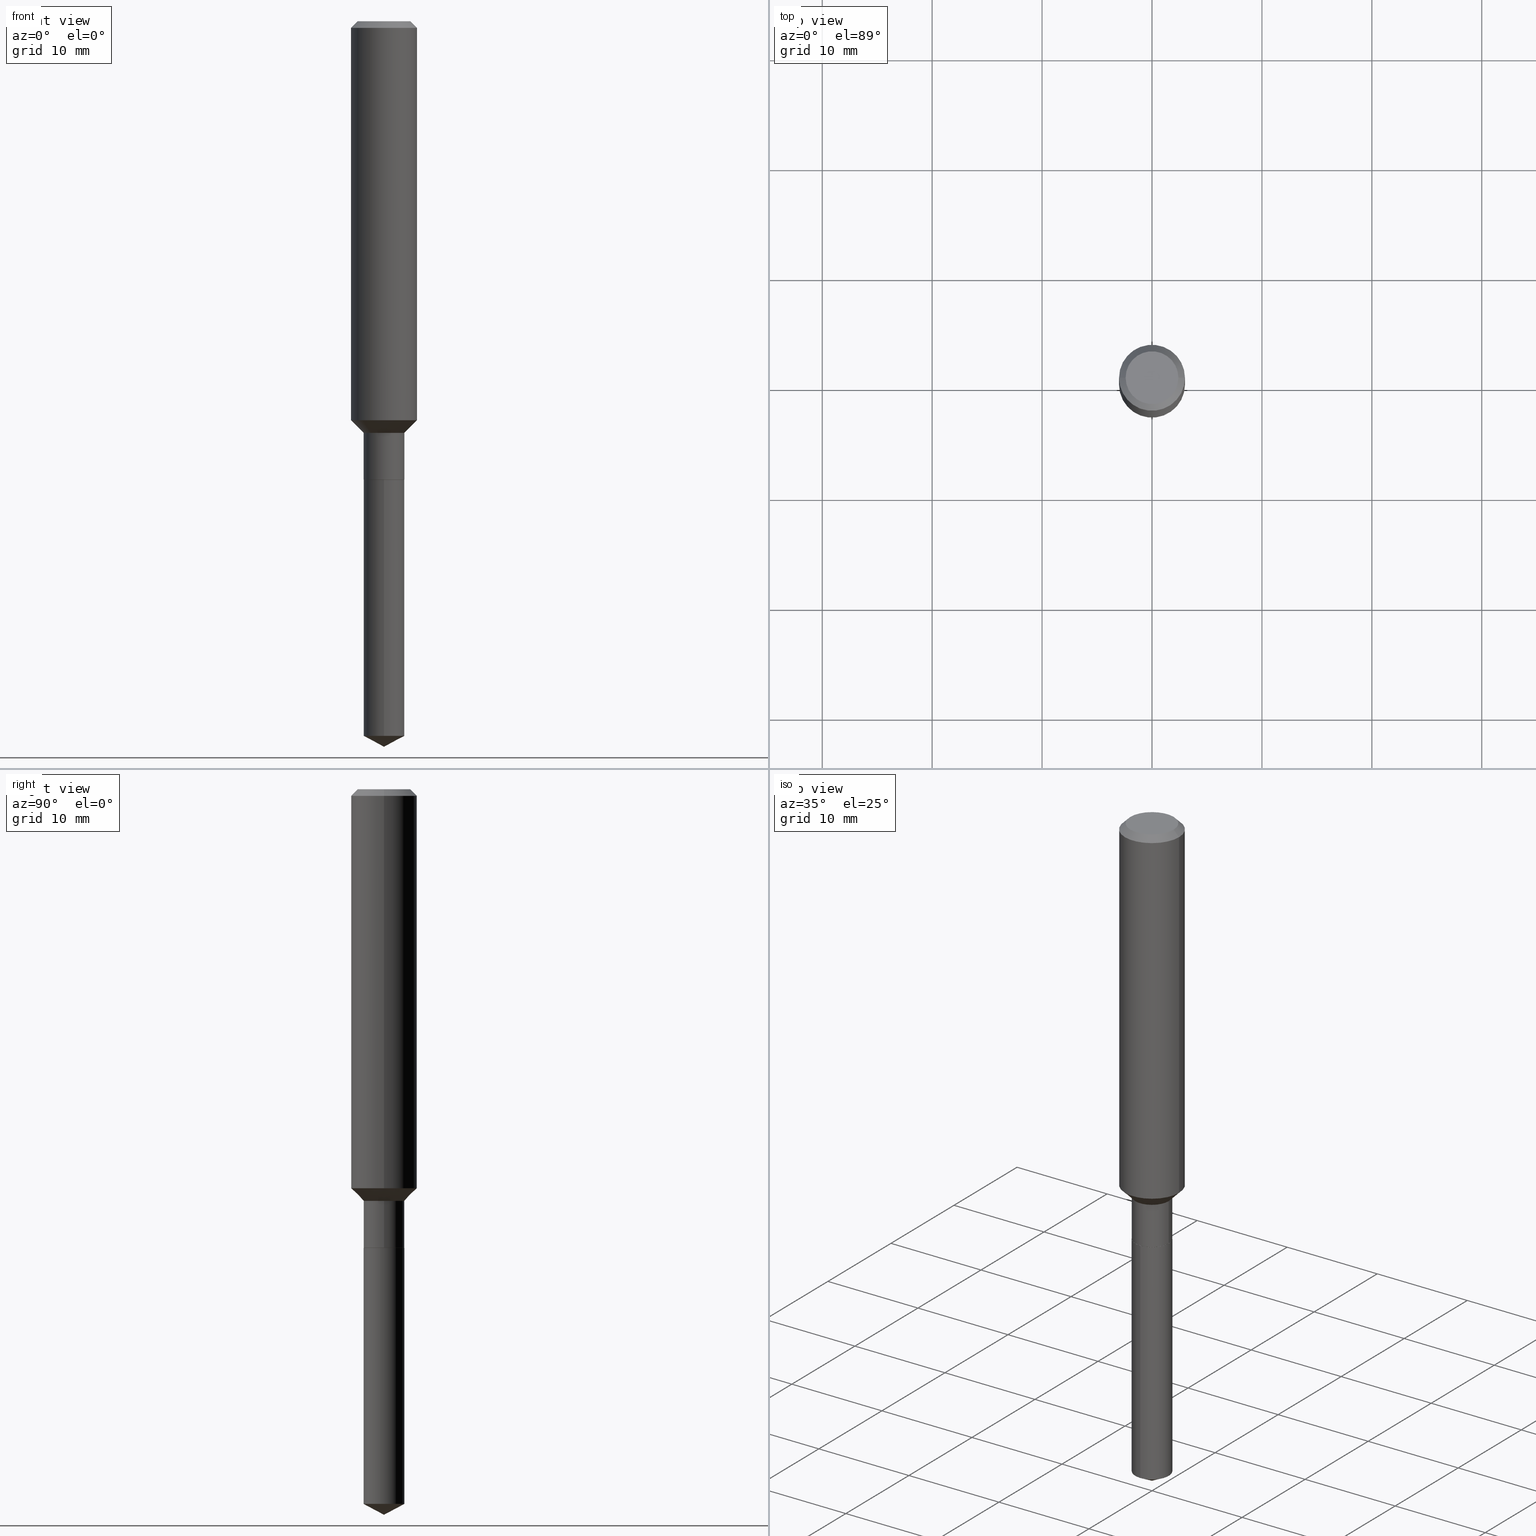
[diagram: canonical four-view strip — front | top / right | iso, engineering-drawing reading convention]
A machine part, canonical four-view strip (front | top / right | iso — engineering-drawing reading convention). The complete STEP part file that produces these views, byte-faithful:
ISO-10303-21;
HEADER;
FILE_DESCRIPTION (( 'STEP AP203' ),
    '1' );
FILE_NAME ('65167.STEP',
    '2024-04-24T20:51:15',
    ( '' ),
    ( '' ),
    'SwSTEP 2.0',
    'SolidWorks 2023',
    '' );
FILE_SCHEMA (( 'CONFIG_CONTROL_DESIGN' ));
ENDSEC;

DATA;
#1 = PERSON_AND_ORGANIZATION ( #147, #418 ) ;
#2 = CARTESIAN_POINT ( 'NONE',  ( 5.176303830012731051E-16, 0.07284999999999426656, -1.641699999999999937 ) ) ;
#3 = CARTESIAN_POINT ( 'NONE',  ( 6.338915894833542662E-29, -9.094304826466861020E-15, -2.598399999999999821 ) ) ;
#4 = AXIS2_PLACEMENT_3D ( 'NONE', #10, #49, #464 ) ;
#5 = AXIS2_PLACEMENT_3D ( 'NONE', #321, #136, #216 ) ;
#6 = EDGE_CURVE ( 'NONE', #28, #138, #320, .T. ) ;
#7 = EDGE_CURVE ( 'NONE', #75, #28, #456, .T. ) ;
#8 = DIRECTION ( 'NONE',  ( -6.982962677686265922E-15, -1.000000000000000000, 3.749962928845934523E-15 ) ) ;
#9 = DATE_TIME_ROLE ( 'classification_date' ) ;
#10 = CARTESIAN_POINT ( 'NONE',  ( 5.776197320209328408E-31, -8.246878922347560526E-17, -0.02362000000000014435 ) ) ;
#11 = VERTEX_POINT ( 'NONE', #195 ) ;
#12 = CARTESIAN_POINT ( 'NONE',  ( 6.254143752238989937E-29, -8.944808678653955332E-15, -2.559664967903461097 ) ) ;
#13 = VECTOR ( 'NONE', #304, 39.37007874015748143 ) ;
#14 = EDGE_LOOP ( 'NONE', ( #234, #66, #118, #146 ) ) ;
#15 = CARTESIAN_POINT ( 'NONE',  ( 2.358133508849003952E-46, -3.366789680499277518E-32, -9.642868896486260050E-18 ) ) ;
#16 = ORIENTED_EDGE ( 'NONE', *, *, #91, .F. ) ;
#17 = DIRECTION ( 'NONE',  ( 1.000000000000000000, -6.982962677686263555E-15, 0.000000000000000000 ) ) ;
#18 = ORIENTED_EDGE ( 'NONE', *, *, #7, .T. ) ;
#19 = EDGE_CURVE ( 'NONE', #181, #243, #253, .T. ) ;
#20 = LINE ( 'NONE', #130, #452 ) ;
#21 = EDGE_LOOP ( 'NONE', ( #68, #469, #481, #78 ) ) ;
#22 = AXIS2_PLACEMENT_3D ( 'NONE', #257, #422, #373 ) ;
#23 = AXIS2_PLACEMENT_3D ( 'NONE', #25, #279, #61 ) ;
#24 = EDGE_CURVE ( 'NONE', #101, #75, #124, .T. ) ;
#25 = CARTESIAN_POINT ( 'NONE',  ( 3.604865567197509213E-29, -5.146792641588679559E-15, -1.474099999999999744 ) ) ;
#26 = ORIENTED_EDGE ( 'NONE', *, *, #457, .T. ) ;
#27 = CARTESIAN_POINT ( 'NONE',  ( 0.09447999999999998066, -7.704367267948738690E-16, -1.928573779296752193E-17 ) ) ;
#28 = VERTEX_POINT ( 'NONE', #183 ) ;
#29 = COORDINATED_UNIVERSAL_TIME_OFFSET ( 5, 0, .BEHIND. ) ;
#30 = ORIENTED_EDGE ( 'NONE', *, *, #263, .T. ) ;
#31 = AXIS2_PLACEMENT_3D ( 'NONE', #121, #426, #8 ) ;
#32 = CC_DESIGN_APPROVAL ( #202, ( #262 ) ) ;
#33 = MECHANICAL_CONTEXT ( 'NONE', #342, 'mechanical' ) ;
#34 = ORIENTED_EDGE ( 'NONE', *, *, #188, .T. ) ;
#35 = APPROVAL_ROLE ( '' ) ;
#36 = CARTESIAN_POINT ( 'NONE',  ( -0.1180999999999999966, 7.422191030112725094E-16, -0.02362000000000014435 ) ) ;
#37 = DATE_TIME_ROLE ( 'creation_date' ) ;
#38 = CARTESIAN_POINT ( 'NONE',  ( -8.969647193287061637E-28, 1.287134536811234496E-13, 36.77167874015748339 ) ) ;
#39 = AXIS2_PLACEMENT_3D ( 'NONE', #38, #332, #145 ) ;
#40 = PERSON_AND_ORGANIZATION_ROLE ( 'creator' ) ;
#41 = LOCAL_TIME ( 16, 51, 15.00000000000000000, #381 ) ;
#42 = DIRECTION ( 'NONE',  ( 1.000000000000000000, -6.982962677686272233E-15, 0.000000000000000000 ) ) ;
#43 = COORDINATED_UNIVERSAL_TIME_OFFSET ( 5, 0, .BEHIND. ) ;
#44 = DIRECTION ( 'NONE',  ( 1.000000000000000000, -6.982962677686266711E-15, 4.876176775795936353E-29 ) ) ;
#45 = CARTESIAN_POINT ( 'NONE',  ( 4.014726139114138019E-29, -5.731964913978790432E-15, -1.641699999999999493 ) ) ;
#46 = DIRECTION ( 'NONE',  ( -2.445468806185136597E-29, 3.491481338843145583E-15, 1.000000000000000000 ) ) ;
#47 = CARTESIAN_POINT ( 'NONE',  ( -5.087088310694042490E-16, -0.07285000000000572962, -1.641699999999999271 ) ) ;
#48 = ORIENTED_EDGE ( 'NONE', *, *, #24, .T. ) ;
#49 = DIRECTION ( 'NONE',  ( 2.445468806185136597E-29, -3.491481338843145583E-15, -1.000000000000000000 ) ) ;
#50 = ORIENTED_EDGE ( 'NONE', *, *, #110, .T. ) ;
#51 = ADVANCED_FACE ( 'NONE', ( #115 ), #214, .T. ) ;
#52 = DIRECTION ( 'NONE',  ( -2.445468806185136597E-29, 3.491481338843145583E-15, 1.000000000000000000 ) ) ;
#53 = AXIS2_PLACEMENT_3D ( 'NONE', #201, #125, #163 ) ;
#54 = CIRCLE ( 'NONE', #222, 0.07234999999999999765 ) ;
#55 = CYLINDRICAL_SURFACE ( 'NONE', #470, 0.07284999999999998421 ) ;
#56 = ADVANCED_FACE ( 'NONE', ( #487 ), #221, .T. ) ;
#57 = ORIENTED_EDGE ( 'NONE', *, *, #417, .T. ) ;
#58 = DIRECTION ( 'NONE',  ( -6.982962677686265922E-15, -1.000000000000000000, 3.541896320645589268E-15 ) ) ;
#59 = EDGE_LOOP ( 'NONE', ( #328, #57, #442, #396 ) ) ;
#60 = ADVANCED_FACE ( 'NONE', ( #192 ), #190, .T. ) ;
#61 = DIRECTION ( 'NONE',  ( 1.000000000000000000, -6.982962677686267499E-15, 0.000000000000000000 ) ) ;
#62 = ORIENTED_EDGE ( 'NONE', *, *, #6, .F. ) ;
#63 = CIRCLE ( 'NONE', #430, 0.07285000000000001197 ) ;
#64 = VECTOR ( 'NONE', #363, 39.37007874015748143 ) ;
#65 = CARTESIAN_POINT ( 'NONE',  ( -5.087088310694042490E-16, -0.07285000000000572962, -1.641699999999999271 ) ) ;
#66 = ORIENTED_EDGE ( 'NONE', *, *, #199, .T. ) ;
#67 = DIRECTION ( 'NONE',  ( 2.445468806185136597E-29, -3.491481338843145583E-15, -1.000000000000000000 ) ) ;
#68 = ORIENTED_EDGE ( 'NONE', *, *, #110, .F. ) ;
#69 = FACE_OUTER_BOUND ( 'NONE', #14, .T. ) ;
#70 = ORIENTED_EDGE ( 'NONE', *, *, #417, .F. ) ;
#71 = CLOSED_SHELL ( 'NONE', ( #88, #137, #171, #368, #60, #448, #427, #189, #489, #378, #474, #56 ) ) ;
#72 = CALENDAR_DATE ( 2024, 24, 4 ) ;
#73 = ORIENTED_EDGE ( 'NONE', *, *, #406, .F. ) ;
#74 =( CONVERSION_BASED_UNIT ( 'INCH', #488 ) LENGTH_UNIT ( ) NAMED_UNIT ( #278 ) );
#75 = VERTEX_POINT ( 'NONE', #423 ) ;
#76 = CC_DESIGN_PERSON_AND_ORGANIZATION_ASSIGNMENT ( #294, #40, ( #262 ) ) ;
#77 = APPROVAL_ROLE ( '' ) ;
#78 = ORIENTED_EDGE ( 'NONE', *, *, #433, .T. ) ;
#79 = AXIS2_PLACEMENT_3D ( 'NONE', #386, #46, #465 ) ;
#80 =( GEOMETRIC_REPRESENTATION_CONTEXT ( 3 ) GLOBAL_UNCERTAINTY_ASSIGNED_CONTEXT ( ( #370 ) ) GLOBAL_UNIT_ASSIGNED_CONTEXT ( ( #74, #109, #219 ) ) REPRESENTATION_CONTEXT ( 'NONE', 'WORKASPACE' ) );
#81 = CARTESIAN_POINT ( 'NONE',  ( -0.07234999999999999765, -5.217887244656357767E-15, -1.641699999999999493 ) ) ;
#82 = DATE_AND_TIME ( #463, #313 ) ;
#83 = DIRECTION ( 'NONE',  ( -2.445468806185136877E-29, 3.491481338843145188E-15, 1.000000000000000000 ) ) ;
#84 = LINE ( 'NONE', #231, #143 ) ;
#85 = AXIS2_PLACEMENT_3D ( 'NONE', #197, #351, #44 ) ;
#86 = FACE_OUTER_BOUND ( 'NONE', #168, .T. ) ;
#87 = AXIS2_PLACEMENT_3D ( 'NONE', #15, #437, #466 ) ;
#88 = ADVANCED_FACE ( 'NONE', ( #300 ), #319, .T. ) ;
#89 = PERSON_AND_ORGANIZATION_ROLE ( 'design_supplier' ) ;
#90 = CARTESIAN_POINT ( 'NONE',  ( 4.716267017698007905E-46, -6.733579360998555036E-32, -1.928573779297252010E-17 ) ) ;
#91 = EDGE_CURVE ( 'NONE', #173, #11, #419, .T. ) ;
#92 = DIRECTION ( 'NONE',  ( -2.445468806185136597E-29, 3.491481338843145583E-15, 1.000000000000000000 ) ) ;
#93 = FACE_OUTER_BOUND ( 'NONE', #215, .T. ) ;
#94 = AXIS2_PLACEMENT_3D ( 'NONE', #45, #198, #345 ) ;
#95 = ORIENTED_EDGE ( 'NONE', *, *, #148, .F. ) ;
#96 = CC_DESIGN_APPROVAL ( #393, ( #305 ) ) ;
#97 = DIRECTION ( 'NONE',  ( 1.000000000000000000, -6.982962677686267499E-15, 0.000000000000000000 ) ) ;
#98 = ADVANCED_FACE ( 'NONE', ( #447 ), #336, .T. ) ;
#99 = VERTEX_POINT ( 'NONE', #450 ) ;
#100 = FACE_OUTER_BOUND ( 'NONE', #217, .T. ) ;
#101 = VERTEX_POINT ( 'NONE', #111 ) ;
#102 = CARTESIAN_POINT ( 'NONE',  ( 0.1181000000000000799, -8.246878922347486570E-16, 5.758764772215004644E-30 ) ) ;
#103 = ORIENTED_EDGE ( 'NONE', *, *, #19, .F. ) ;
#104 = DIRECTION ( 'NONE',  ( 1.000000000000000000, -6.982962677686265922E-15, 4.876176775795935793E-29 ) ) ;
#105 = ORIENTED_EDGE ( 'NONE', *, *, #457, .F. ) ;
#106 = CC_DESIGN_PERSON_AND_ORGANIZATION_ASSIGNMENT ( #186, #413, ( #162 ) ) ;
#107 = APPROVAL_STATUS ( 'not_yet_approved' ) ;
#108 = ORIENTED_EDGE ( 'NONE', *, *, #184, .T. ) ;
#109 =( NAMED_UNIT ( * ) PLANE_ANGLE_UNIT ( ) SI_UNIT ( $, .RADIAN. ) );
#110 = EDGE_CURVE ( 'NONE', #388, #241, #255, .T. ) ;
#111 = CARTESIAN_POINT ( 'NONE',  ( 0.07234999999999999765, -6.237182263709391709E-15, -1.641699999999999493 ) ) ;
#112 = AXIS2_PLACEMENT_3D ( 'NONE', #334, #303, #293 ) ;
#113 = AXIS2_PLACEMENT_3D ( 'NONE', #244, #273, #397 ) ;
#114 = CC_DESIGN_PERSON_AND_ORGANIZATION_ASSIGNMENT ( #1, #89, ( #262 ) ) ;
#115 = FACE_OUTER_BOUND ( 'NONE', #414, .T. ) ;
#116 = APPLICATION_PROTOCOL_DEFINITION ( 'international standard', 'config_control_design', 1994, #342 ) ;
#117 = DIRECTION ( 'NONE',  ( -0.7071067811865459074, 2.468850131082239706E-15, -0.7071067811865492381 ) ) ;
#118 = ORIENTED_EDGE ( 'NONE', *, *, #233, .T. ) ;
#119 = AXIS2_PLACEMENT_3D ( 'NONE', #365, #140, #58 ) ;
#120 = CARTESIAN_POINT ( 'NONE',  ( 0.07284999999999998421, -5.087088310694443823E-16, 3.552294781167338121E-30 ) ) ;
#121 = CARTESIAN_POINT ( 'NONE',  ( 4.014726139114138019E-29, -5.731964913978790432E-15, -1.641699999999999493 ) ) ;
#122 = CARTESIAN_POINT ( 'NONE',  ( 0.07284999999999998421, -5.655501472658124631E-15, -1.474099999999999744 ) ) ;
#123 = SHAPE_DEFINITION_REPRESENTATION ( #327, #375 ) ;
#124 = CIRCLE ( 'NONE', #312, 0.07234999999999999765 ) ;
#125 = DIRECTION ( 'NONE',  ( -2.445468806185136597E-29, 3.491481338843145583E-15, 1.000000000000000000 ) ) ;
#126 = CARTESIAN_POINT ( 'NONE',  ( 4.716267017698007905E-46, -6.733579360998555036E-32, -1.928573779297252010E-17 ) ) ;
#127 = CARTESIAN_POINT ( 'NONE',  ( 6.358533913505980400E-29, -9.066454917963049456E-15, -2.598399999999999821 ) ) ;
#128 = ORIENTED_EDGE ( 'NONE', *, *, #406, .T. ) ;
#129 = EDGE_CURVE ( 'NONE', #173, #401, #175, .T. ) ;
#130 = CARTESIAN_POINT ( 'NONE',  ( 0.07234999999999999765, -6.237182263709391709E-15, -1.641699999999999493 ) ) ;
#131 = VECTOR ( 'NONE', #425, 39.37007874015748143 ) ;
#132 = ORIENTED_EDGE ( 'NONE', *, *, #355, .F. ) ;
#133 = AXIS2_PLACEMENT_3D ( 'NONE', #434, #211, #239 ) ;
#134 = DIRECTION ( 'NONE',  ( 1.000000000000000000, -6.982962677686263555E-15, 0.000000000000000000 ) ) ;
#135 = ORIENTED_EDGE ( 'NONE', *, *, #311, .F. ) ;
#136 = DIRECTION ( 'NONE',  ( 2.439545833910692296E-29, -3.499963372254795568E-15, -1.000000000000000000 ) ) ;
#137 = ADVANCED_FACE ( 'NONE', ( #160 ), #330, .T. ) ;
#138 = VERTEX_POINT ( 'NONE', #428 ) ;
#139 = PRODUCT ( '65167', '65167', '', ( #33 ) ) ;
#140 = DIRECTION ( 'NONE',  ( -2.439545833910692576E-29, 3.499963372254795568E-15, 1.000000000000000000 ) ) ;
#141 = ORIENTED_EDGE ( 'NONE', *, *, #460, .F. ) ;
#142 = EDGE_CURVE ( 'NONE', #181, #388, #383, .T. ) ;
#143 = VECTOR ( 'NONE', #385, 39.37007874015748143 ) ;
#144 = AXIS2_PLACEMENT_3D ( 'NONE', #317, #52, #17 ) ;
#145 = DIRECTION ( 'NONE',  ( -6.982962677686265922E-15, -1.000000000000000000, 3.541896320645589268E-15 ) ) ;
#146 = ORIENTED_EDGE ( 'NONE', *, *, #299, .F. ) ;
#147 = PERSON ( 'UNSPECIFIED', 'UNSPECIFIED', 'UNSPECIFIED', ('UNSPECIFIED'), ('UNSPECIFIED'), ('UNSPECIFIED') ) ;
#148 = EDGE_CURVE ( 'NONE', #241, #243, #443, .T. ) ;
#149 = APPROVAL ( #107, 'UNSPECIFIED' ) ;
#150 = APPROVAL_DATE_TIME ( #484, #202 ) ;
#151 = DIRECTION ( 'NONE',  ( -0.7071067811866138531, 7.493145998870593974E-15, 0.7071067811864811814 ) ) ;
#152 = AXIS2_PLACEMENT_3D ( 'NONE', #12, #462, #266 ) ;
#153 = CARTESIAN_POINT ( 'NONE',  ( 0.000000000000000000, 0.000000000000000000, 0.000000000000000000 ) ) ;
#154 = CARTESIAN_POINT ( 'NONE',  ( 0.07284999999999998421, -5.655501472658124631E-15, -1.474099999999999744 ) ) ;
#155 = LINE ( 'NONE', #47, #13 ) ;
#156 = APPLICATION_CONTEXT ( 'configuration controlled 3d designs of mechanical parts and assemblies' ) ;
#157 = CIRCLE ( 'NONE', #361, 0.09447999999999998066 ) ;
#158 = PERSON_AND_ORGANIZATION ( #147, #418 ) ;
#159 = CARTESIAN_POINT ( 'NONE',  ( 3.604865567197509213E-29, -5.146792641588679559E-15, -1.474099999999999744 ) ) ;
#160 = FACE_OUTER_BOUND ( 'NONE', #339, .T. ) ;
#161 = APPROVAL_STATUS ( 'not_yet_approved' ) ;
#162 = PRODUCT_DEFINITION ( 'UNKNOWN', '', #262, #284 ) ;
#163 = DIRECTION ( 'NONE',  ( 1.000000000000000000, -6.982962677686266711E-15, 4.876176775795936353E-29 ) ) ;
#164 = ORIENTED_EDGE ( 'NONE', *, *, #358, .F. ) ;
#165 = VECTOR ( 'NONE', #117, 39.37007874015748143 ) ;
#166 = CARTESIAN_POINT ( 'NONE',  ( -0.1180999999999999966, -1.696484979182072133E-15, -0.02362000000000014435 ) ) ;
#167 = CIRCLE ( 'NONE', #144, 0.1181000000000001632 ) ;
#168 = EDGE_LOOP ( 'NONE', ( #410, #455, #95, #141 ) ) ;
#169 = LINE ( 'NONE', #247, #193 ) ;
#170 = EDGE_LOOP ( 'NONE', ( #440, #467, #490, #62 ) ) ;
#171 = ADVANCED_FACE ( 'NONE', ( #86 ), #308, .T. ) ;
#172 = DIRECTION ( 'NONE',  ( 1.000000000000000000, -6.982962677686265922E-15, 4.876176775795935232E-29 ) ) ;
#173 = VERTEX_POINT ( 'NONE', #122 ) ;
#174 = CARTESIAN_POINT ( 'NONE',  ( 3.604865567197509213E-29, -5.146792641588679559E-15, -1.474099999999999744 ) ) ;
#175 = CIRCLE ( 'NONE', #451, 0.07284999999999998421 ) ;
#176 = ORIENTED_EDGE ( 'NONE', *, *, #91, .T. ) ;
#177 = FACE_OUTER_BOUND ( 'NONE', #412, .T. ) ;
#178 = EDGE_LOOP ( 'NONE', ( #364, #108, #210, #323 ) ) ;
#179 = CARTESIAN_POINT ( 'NONE',  ( 4.014726139114138019E-29, -5.731964913978790432E-15, -1.641699999999999493 ) ) ;
#180 = EDGE_CURVE ( 'NONE', #446, #243, #236, .T. ) ;
#181 = VERTEX_POINT ( 'NONE', #344 ) ;
#182 = DATE_AND_TIME ( #415, #208 ) ;
#183 = CARTESIAN_POINT ( 'NONE',  ( -0.07284999999999999809, -4.920875524447791469E-15, -1.641199999999999770 ) ) ;
#184 = EDGE_CURVE ( 'NONE', #99, #438, #461, .T. ) ;
#185 = CIRCLE ( 'NONE', #152, 0.07285000000000001197 ) ;
#186 = PERSON_AND_ORGANIZATION ( #147, #418 ) ;
#187 = DIRECTION ( 'NONE',  ( -2.445468806185136597E-29, 3.491481338843145583E-15, 1.000000000000000000 ) ) ;
#188 = EDGE_CURVE ( 'NONE', #388, #181, #157, .T. ) ;
#189 = ADVANCED_FACE ( 'NONE', ( #268 ), #230, .T. ) ;
#190 = CYLINDRICAL_SURFACE ( 'NONE', #407, 0.07284999999999998421 ) ;
#191 = PERSON_AND_ORGANIZATION ( #147, #418 ) ;
#192 = FACE_OUTER_BOUND ( 'NONE', #283, .T. ) ;
#193 = VECTOR ( 'NONE', #468, 39.37007874015748143 ) ;
#194 = DIRECTION ( 'NONE',  ( 1.000000000000000000, 0.000000000000000000, 0.000000000000000000 ) ) ;
#195 = CARTESIAN_POINT ( 'NONE',  ( 0.1181000000000001632, -5.813491003240776621E-15, -1.428849999999999731 ) ) ;
#196 = CC_DESIGN_PERSON_AND_ORGANIZATION_ASSIGNMENT ( #191, #482, ( #139 ) ) ;
#197 = CARTESIAN_POINT ( 'NONE',  ( 0.000000000000000000, 0.000000000000000000, 0.000000000000000000 ) ) ;
#198 = DIRECTION ( 'NONE',  ( -2.439545833910692576E-29, 3.499963372254795568E-15, 1.000000000000000000 ) ) ;
#199 = EDGE_CURVE ( 'NONE', #99, #251, #185, .T. ) ;
#200 = APPROVAL_PERSON_ORGANIZATION ( #158, #393, #309 ) ;
#201 = CARTESIAN_POINT ( 'NONE',  ( 0.000000000000000000, 0.000000000000000000, 0.000000000000000000 ) ) ;
#202 = APPROVAL ( #338, 'UNSPECIFIED' ) ;
#203 = CARTESIAN_POINT ( 'NONE',  ( 5.776197320209328408E-31, -8.246878922347560526E-17, -0.02362000000000014435 ) ) ;
#204 = DIRECTION ( 'NONE',  ( 1.000000000000000000, -6.982962677686266711E-15, 0.000000000000000000 ) ) ;
#205 = ORIENTED_EDGE ( 'NONE', *, *, #272, .F. ) ;
#206 = CIRCLE ( 'NONE', #31, 0.07284999999999999809 ) ;
#207 = CARTESIAN_POINT ( 'NONE',  ( 5.176303830012957849E-16, 0.07284999999999426656, -1.641699999999999937 ) ) ;
#208 = LOCAL_TIME ( 16, 51, 15.00000000000000000, #29 ) ;
#209 = DIRECTION ( 'NONE',  ( 1.000000000000000000, -6.982962677686272233E-15, 0.000000000000000000 ) ) ;
#210 = ORIENTED_EDGE ( 'NONE', *, *, #289, .F. ) ;
#211 = DIRECTION ( 'NONE',  ( -2.445468806185136597E-29, 3.491481338843145583E-15, 1.000000000000000000 ) ) ;
#212 = ORIENTED_EDGE ( 'NONE', *, *, #148, .T. ) ;
#213 = LINE ( 'NONE', #102, #64 ) ;
#214 = CONICAL_SURFACE ( 'NONE', #39, 74.04434902938294272, 1.082104136236483161 ) ;
#215 = EDGE_LOOP ( 'NONE', ( #281, #34 ) ) ;
#216 = DIRECTION ( 'NONE',  ( 6.982962677686265922E-15, 1.000000000000000000, -3.499963372254795568E-15 ) ) ;
#217 = EDGE_LOOP ( 'NONE', ( #477, #128, #277 ) ) ;
#218 = ORIENTED_EDGE ( 'NONE', *, *, #24, .F. ) ;
#219 =( NAMED_UNIT ( * ) SI_UNIT ( $, .STERADIAN. ) SOLID_ANGLE_UNIT ( ) );
#220 = EDGE_LOOP ( 'NONE', ( #366, #357 ) ) ;
#221 = CONICAL_SURFACE ( 'NONE', #22, 0.07234999999999999765, 0.7853981633975420928 ) ;
#222 = AXIS2_PLACEMENT_3D ( 'NONE', #179, #92, #209 ) ;
#223 = CARTESIAN_POINT ( 'NONE',  ( 5.776197320209328408E-31, -8.246878922347560526E-17, -0.02362000000000014435 ) ) ;
#224 = DIRECTION ( 'NONE',  ( 1.000000000000000000, -6.982962677686265922E-15, 4.876176775795935232E-29 ) ) ;
#225 = ORIENTED_EDGE ( 'NONE', *, *, #129, .F. ) ;
#226 = COORDINATED_UNIVERSAL_TIME_OFFSET ( 5, 0, .BEHIND. ) ;
#227 = DIRECTION ( 'NONE',  ( 1.000000000000000000, -6.982962677686267499E-15, 0.000000000000000000 ) ) ;
#228 = VECTOR ( 'NONE', #151, 39.37007874015748143 ) ;
#229 = AXIS2_PLACEMENT_3D ( 'NONE', #250, #335, #367 ) ;
#230 = CYLINDRICAL_SURFACE ( 'NONE', #53, 0.1181000000000000799 ) ;
#231 = CARTESIAN_POINT ( 'NONE',  ( -0.07284999999999998421, -4.629162258587446784E-15, -1.474099999999999744 ) ) ;
#232 = DIRECTION ( 'NONE',  ( 0.7071067811865459074, -7.319954787623251312E-15, -0.7071067811865492381 ) ) ;
#233 = EDGE_CURVE ( 'NONE', #251, #377, #155, .T. ) ;
#234 = ORIENTED_EDGE ( 'NONE', *, *, #184, .F. ) ;
#235 = CIRCLE ( 'NONE', #133, 0.1180999999999999966 ) ;
#236 = LINE ( 'NONE', #432, #131 ) ;
#237 = DIRECTION ( 'NONE',  ( -2.445468806185136597E-29, 3.491481338843145583E-15, 1.000000000000000000 ) ) ;
#238 = FACE_OUTER_BOUND ( 'NONE', #360, .T. ) ;
#239 = DIRECTION ( 'NONE',  ( 1.000000000000000000, -6.982962677686266711E-15, 0.000000000000000000 ) ) ;
#240 = CONICAL_SURFACE ( 'NONE', #444, 0.07284999999999998421, 0.7853981633974501664 ) ;
#241 = VERTEX_POINT ( 'NONE', #310 ) ;
#242 = LINE ( 'NONE', #127, #362 ) ;
#243 = VERTEX_POINT ( 'NONE', #166 ) ;
#244 = CARTESIAN_POINT ( 'NONE',  ( 3.604865567197509213E-29, -5.146792641588679559E-15, -1.474099999999999744 ) ) ;
#245 = ORIENTED_EDGE ( 'NONE', *, *, #6, .T. ) ;
#246 = PRODUCT_RELATED_PRODUCT_CATEGORY ( 'detail', '', ( #139 ) ) ;
#247 = CARTESIAN_POINT ( 'NONE',  ( -0.07284999999999998421, 5.176303830012328732E-16, -3.583444213250698428E-30 ) ) ;
#248 = VECTOR ( 'NONE', #232, 39.37007874015748143 ) ;
#249 = ORIENTED_EDGE ( 'NONE', *, *, #355, .T. ) ;
#250 = CARTESIAN_POINT ( 'NONE',  ( 4.014726139114138019E-29, -5.731964913978790432E-15, -1.641699999999999493 ) ) ;
#251 = VERTEX_POINT ( 'NONE', #264 ) ;
#252 = DIRECTION ( 'NONE',  ( -2.438088387897960049E-29, 3.491481338843145188E-15, 1.000000000000000000 ) ) ;
#253 = LINE ( 'NONE', #36, #165 ) ;
#254 = APPLICATION_PROTOCOL_DEFINITION ( 'international standard', 'config_control_design', 1994, #156 ) ;
#255 = LINE ( 'NONE', #485, #248 ) ;
#256 = LOCAL_TIME ( 16, 51, 15.00000000000000000, #226 ) ;
#257 = CARTESIAN_POINT ( 'NONE',  ( 4.014726139114138019E-29, -5.731964913978790432E-15, -1.641699999999999493 ) ) ;
#258 = DIRECTION ( 'NONE',  ( -2.445468806185136597E-29, 3.491481338843145583E-15, 1.000000000000000000 ) ) ;
#259 = EDGE_CURVE ( 'NONE', #251, #99, #63, .T. ) ;
#260 = ORIENTED_EDGE ( 'NONE', *, *, #389, .F. ) ;
#261 = VECTOR ( 'NONE', #350, 39.37007874015748143 ) ;
#262 = PRODUCT_DEFINITION_FORMATION_WITH_SPECIFIED_SOURCE ( 'ANY', '', #139, .NOT_KNOWN. ) ;
#263 = EDGE_CURVE ( 'NONE', #138, #28, #286, .T. ) ;
#264 = CARTESIAN_POINT ( 'NONE',  ( -5.087088310693820623E-16, -0.07285000000000896314, -2.559664967903461097 ) ) ;
#265 = EDGE_CURVE ( 'NONE', #138, #173, #384, .T. ) ;
#266 = DIRECTION ( 'NONE',  ( -6.982962677686265133E-15, -1.000000000000000000, 0.000000000000000000 ) ) ;
#267 = PERSON_AND_ORGANIZATION_ROLE ( 'classification_officer' ) ;
#268 = FACE_OUTER_BOUND ( 'NONE', #59, .T. ) ;
#269 = COORDINATED_UNIVERSAL_TIME_OFFSET ( 5, 0, .BEHIND. ) ;
#270 = DIRECTION ( 'NONE',  ( -2.445468806185136597E-29, 3.491481338843145583E-15, 1.000000000000000000 ) ) ;
#271 = DIRECTION ( 'NONE',  ( -2.445468806185136597E-29, 3.491481338843145583E-15, 1.000000000000000000 ) ) ;
#272 = EDGE_CURVE ( 'NONE', #401, #446, #84, .T. ) ;
#273 = DIRECTION ( 'NONE',  ( -2.445468806185136597E-29, 3.491481338843145583E-15, 1.000000000000000000 ) ) ;
#274 = ORIENTED_EDGE ( 'NONE', *, *, #199, .F. ) ;
#275 = PLANE ( 'NONE',  #87 ) ;
#276 = CC_DESIGN_SECURITY_CLASSIFICATION ( #305, ( #262 ) ) ;
#277 = ORIENTED_EDGE ( 'NONE', *, *, #259, .F. ) ;
#278 = DIMENSIONAL_EXPONENTS ( 1.000000000000000000, 0.000000000000000000, 0.000000000000000000, 0.000000000000000000, 0.000000000000000000, 0.000000000000000000, 0.000000000000000000 ) ;
#279 = DIRECTION ( 'NONE',  ( -2.445468806185136597E-29, 3.491481338843145583E-15, 1.000000000000000000 ) ) ;
#280 = CC_DESIGN_DATE_AND_TIME_ASSIGNMENT ( #333, #37, ( #162 ) ) ;
#281 = ORIENTED_EDGE ( 'NONE', *, *, #142, .T. ) ;
#282 = DIRECTION ( 'NONE',  ( -6.165590087286822619E-15, -0.8829475928589246569, 0.4694715627858948581 ) ) ;
#283 = EDGE_LOOP ( 'NONE', ( #30, #249, #225, #472 ) ) ;
#284 = DESIGN_CONTEXT ( 'detailed design', #156, 'design' ) ;
#285 = FACE_OUTER_BOUND ( 'NONE', #316, .T. ) ;
#286 = CIRCLE ( 'NONE', #79, 0.07284999999999998421 ) ;
#287 = AXIS2_PLACEMENT_3D ( 'NONE', #223, #67, #340 ) ;
#288 = ORIENTED_EDGE ( 'NONE', *, *, #265, .T. ) ;
#289 = EDGE_CURVE ( 'NONE', #377, #438, #424, .T. ) ;
#290 = DIRECTION ( 'NONE',  ( 0.000000000000000000, 0.000000000000000000, 1.000000000000000000 ) ) ;
#291 = DIRECTION ( 'NONE',  ( 0.7071067811865487940, -2.468850131082270471E-15, 0.7071067811865462405 ) ) ;
#292 = FACE_OUTER_BOUND ( 'NONE', #21, .T. ) ;
#293 = DIRECTION ( 'NONE',  ( -6.982962677686265922E-15, -1.000000000000000000, 3.749962928845934523E-15 ) ) ;
#294 = PERSON_AND_ORGANIZATION ( #147, #418 ) ;
#295 = VERTEX_POINT ( 'NONE', #3 ) ;
#296 = AXIS2_PLACEMENT_3D ( 'NONE', #382, #341, #42 ) ;
#297 = AXIS2_PLACEMENT_3D ( 'NONE', #471, #356, #134 ) ;
#298 = MANIFOLD_SOLID_BREP ( 'Body-Move/Copy2[1]', #416 ) ;
#299 = EDGE_CURVE ( 'NONE', #438, #377, #206, .T. ) ;
#300 = FACE_OUTER_BOUND ( 'NONE', #380, .T. ) ;
#301 = MANIFOLD_SOLID_BREP ( 'Body-Move/Copy2[2]', #71 ) ;
#302 = DATE_AND_TIME ( #349, #390 ) ;
#303 = DIRECTION ( 'NONE',  ( -2.439545833910692576E-29, 3.499963372254795568E-15, 1.000000000000000000 ) ) ;
#304 = DIRECTION ( 'NONE',  ( -2.439545833910692856E-29, 3.499963372254795568E-15, 1.000000000000000000 ) ) ;
#305 = SECURITY_CLASSIFICATION ( '', '', #394 ) ;
#306 = APPROVAL_DATE_TIME ( #82, #393 ) ;
#307 = DIRECTION ( 'NONE',  ( 1.000000000000000000, -6.982962677686267499E-15, 0.000000000000000000 ) ) ;
#308 = CYLINDRICAL_SURFACE ( 'NONE', #85, 0.1181000000000000799 ) ;
#309 = APPROVAL_ROLE ( '' ) ;
#310 = CARTESIAN_POINT ( 'NONE',  ( 0.1180999999999999966, -9.071566814582237199E-16, -0.02362000000000014435 ) ) ;
#311 = EDGE_CURVE ( 'NONE', #11, #446, #167, .T. ) ;
#312 = AXIS2_PLACEMENT_3D ( 'NONE', #453, #369, #421 ) ;
#313 = LOCAL_TIME ( 16, 51, 15.00000000000000000, #269 ) ;
#314 = CARTESIAN_POINT ( 'NONE',  ( 6.254143752238989937E-29, -8.944808678653955332E-15, -2.559664967903461097 ) ) ;
#315 = DIRECTION ( 'NONE',  ( 0.7071067811866138531, -2.468850131082952047E-15, 0.7071067811864811814 ) ) ;
#316 = EDGE_LOOP ( 'NONE', ( #318, #405, #135, #16 ) ) ;
#317 = CARTESIAN_POINT ( 'NONE',  ( 3.494208103717631419E-29, -4.988803111006027569E-15, -1.428849999999999731 ) ) ;
#318 = ORIENTED_EDGE ( 'NONE', *, *, #129, .T. ) ;
#319 = CONICAL_SURFACE ( 'NONE', #296, 0.07234999999999999765, 0.7853981633975420928 ) ;
#320 = CIRCLE ( 'NONE', #371, 0.07284999999999998421 ) ;
#321 = CARTESIAN_POINT ( 'NONE',  ( 4.014726139114138019E-29, -5.731964913978790432E-15, -1.641699999999999493 ) ) ;
#322 = CONICAL_SURFACE ( 'NONE', #119, 74.04434902938294272, 1.082104136236483161 ) ;
#323 = ORIENTED_EDGE ( 'NONE', *, *, #233, .F. ) ;
#324 = PLANE ( 'NONE',  #436 ) ;
#325 = EDGE_LOOP ( 'NONE', ( #132, #245, #288, #105 ) ) ;
#326 = PLANE ( 'NONE',  #5 ) ;
#327 = PRODUCT_DEFINITION_SHAPE ( 'NONE', 'NONE',  #162 ) ;
#328 = ORIENTED_EDGE ( 'NONE', *, *, #180, .F. ) ;
#329 = APPROVAL_DATE_TIME ( #182, #149 ) ;
#330 = CONICAL_SURFACE ( 'NONE', #4, 0.1180999999999999966, 0.7853981633974459475 ) ;
#331 = CONICAL_SURFACE ( 'NONE', #113, 0.07284999999999998421, 0.7853981633974501664 ) ;
#332 = DIRECTION ( 'NONE',  ( -2.439545833910692576E-29, 3.499963372254795568E-15, 1.000000000000000000 ) ) ;
#333 = DATE_AND_TIME ( #420, #256 ) ;
#334 = CARTESIAN_POINT ( 'NONE',  ( 4.014726139114138019E-29, -5.731964913978790432E-15, -1.641699999999999493 ) ) ;
#335 = DIRECTION ( 'NONE',  ( -2.439545833910692576E-29, 3.499963372254795568E-15, 1.000000000000000000 ) ) ;
#336 = CYLINDRICAL_SURFACE ( 'NONE', #112, 0.07284999999999999809 ) ;
#337 = CC_DESIGN_DATE_AND_TIME_ASSIGNMENT ( #302, #9, ( #305 ) ) ;
#338 = APPROVAL_STATUS ( 'not_yet_approved' ) ;
#339 = EDGE_LOOP ( 'NONE', ( #435, #50, #212, #103 ) ) ;
#340 = DIRECTION ( 'NONE',  ( -1.000000000000000000, 6.982962677686266711E-15, 0.000000000000000000 ) ) ;
#341 = DIRECTION ( 'NONE',  ( -2.445468806185136597E-29, 3.491481338843145583E-15, 1.000000000000000000 ) ) ;
#342 = APPLICATION_CONTEXT ( 'configuration controlled 3d designs of mechanical parts and assemblies' ) ;
#343 = PERSON_AND_ORGANIZATION ( #147, #418 ) ;
#344 = CARTESIAN_POINT ( 'NONE',  ( -0.09447999999999998066, 7.009847083995354710E-16, -1.928573779297727792E-17 ) ) ;
#345 = DIRECTION ( 'NONE',  ( -6.982962677686265922E-15, -1.000000000000000000, 3.749962928845934523E-15 ) ) ;
#346 = AXIS2_PLACEMENT_3D ( 'NONE', #203, #271, #204 ) ;
#347 = CIRCLE ( 'NONE', #297, 0.1181000000000001632 ) ;
#348 = DIRECTION ( 'NONE',  ( -2.439545833910692576E-29, 3.499963372254795568E-15, 1.000000000000000000 ) ) ;
#349 = CALENDAR_DATE ( 2024, 24, 4 ) ;
#350 = DIRECTION ( 'NONE',  ( -2.439545833910692856E-29, 3.499963372254795568E-15, 1.000000000000000000 ) ) ;
#351 = DIRECTION ( 'NONE',  ( -2.445468806185136597E-29, 3.491481338843145583E-15, 1.000000000000000000 ) ) ;
#352 = VECTOR ( 'NONE', #83, 39.37007874015748143 ) ;
#353 = APPROVAL_PERSON_ORGANIZATION ( #379, #149, #77 ) ;
#354 = CARTESIAN_POINT ( 'NONE',  ( 0.000000000000000000, 0.000000000000000000, 0.000000000000000000 ) ) ;
#355 = EDGE_CURVE ( 'NONE', #28, #401, #169, .T. ) ;
#356 = DIRECTION ( 'NONE',  ( -2.445468806185136597E-29, 3.491481338843145583E-15, 1.000000000000000000 ) ) ;
#357 = ORIENTED_EDGE ( 'NONE', *, *, #299, .T. ) ;
#358 = EDGE_CURVE ( 'NONE', #101, #138, #20, .T. ) ;
#359 = FACE_OUTER_BOUND ( 'NONE', #325, .T. ) ;
#360 = EDGE_LOOP ( 'NONE', ( #205, #26, #176, #70 ) ) ;
#361 = AXIS2_PLACEMENT_3D ( 'NONE', #90, #392, #395 ) ;
#362 = VECTOR ( 'NONE', #402, 39.37007874015748854 ) ;
#363 = DIRECTION ( 'NONE',  ( -2.445468806185136877E-29, 3.491481338843145188E-15, 1.000000000000000000 ) ) ;
#364 = ORIENTED_EDGE ( 'NONE', *, *, #259, .T. ) ;
#365 = CARTESIAN_POINT ( 'NONE',  ( -8.969647193287061637E-28, 1.287134536811234496E-13, 36.77167874015748339 ) ) ;
#366 = ORIENTED_EDGE ( 'NONE', *, *, #289, .T. ) ;
#367 = DIRECTION ( 'NONE',  ( -6.982962677686265922E-15, -1.000000000000000000, 3.749962928845934523E-15 ) ) ;
#368 = ADVANCED_FACE ( 'NONE', ( #285 ), #240, .T. ) ;
#369 = DIRECTION ( 'NONE',  ( -2.445468806185136597E-29, 3.491481338843145583E-15, 1.000000000000000000 ) ) ;
#370 = UNCERTAINTY_MEASURE_WITH_UNIT (LENGTH_MEASURE( 1.000000000000000082E-05 ), #74, 'distance_accuracy_value', 'NONE');
#371 = AXIS2_PLACEMENT_3D ( 'NONE', #483, #187, #227 ) ;
#372 = CIRCLE ( 'NONE', #23, 0.07284999999999998421 ) ;
#373 = DIRECTION ( 'NONE',  ( 1.000000000000000000, -6.982962677686272233E-15, 0.000000000000000000 ) ) ;
#374 = EDGE_CURVE ( 'NONE', #295, #251, #441, .T. ) ;
#375 = ADVANCED_BREP_SHAPE_REPRESENTATION ( '65167', ( #298, #301, #391 ), #80 ) ;
#376 = PERSON_AND_ORGANIZATION ( #147, #418 ) ;
#377 = VERTEX_POINT ( 'NONE', #65 ) ;
#378 = ADVANCED_FACE ( 'NONE', ( #93 ), #275, .F. ) ;
#379 = PERSON_AND_ORGANIZATION ( #147, #418 ) ;
#380 = EDGE_LOOP ( 'NONE', ( #48, #18, #403, #164 ) ) ;
#381 = COORDINATED_UNIVERSAL_TIME_OFFSET ( 5, 0, .BEHIND. ) ;
#382 = CARTESIAN_POINT ( 'NONE',  ( 4.014726139114138019E-29, -5.731964913978790432E-15, -1.641699999999999493 ) ) ;
#383 = CIRCLE ( 'NONE', #478, 0.09447999999999998066 ) ;
#384 = LINE ( 'NONE', #120, #352 ) ;
#385 = DIRECTION ( 'NONE',  ( -0.7071067811865487940, 7.493145998870358893E-15, 0.7071067811865462405 ) ) ;
#386 = CARTESIAN_POINT ( 'NONE',  ( 4.013503404711045218E-29, -5.730219173309368928E-15, -1.641199999999999770 ) ) ;
#387 = VECTOR ( 'NONE', #291, 39.37007874015748143 ) ;
#388 = VERTEX_POINT ( 'NONE', #27 ) ;
#389 = EDGE_CURVE ( 'NONE', #75, #101, #54, .T. ) ;
#390 = LOCAL_TIME ( 16, 51, 15.00000000000000000, #43 ) ;
#391 = AXIS2_PLACEMENT_3D ( 'NONE', #454, #290, #194 ) ;
#392 = DIRECTION ( 'NONE',  ( -2.445468806185136597E-29, 3.491481338843145583E-15, 1.000000000000000000 ) ) ;
#393 = APPROVAL ( #161, 'UNSPECIFIED' ) ;
#394 = SECURITY_CLASSIFICATION_LEVEL ( 'unclassified' ) ;
#395 = DIRECTION ( 'NONE',  ( 1.000000000000000000, -6.982962677686267499E-15, 4.875432709231658792E-29 ) ) ;
#396 = ORIENTED_EDGE ( 'NONE', *, *, #433, .F. ) ;
#397 = DIRECTION ( 'NONE',  ( 1.000000000000000000, -6.982962677686267499E-15, 0.000000000000000000 ) ) ;
#398 = CONICAL_SURFACE ( 'NONE', #287, 0.1180999999999999966, 0.7853981633974459475 ) ;
#399 = CARTESIAN_POINT ( 'NONE',  ( -0.1181000000000001632, -4.149652140073347794E-15, -1.428849999999999731 ) ) ;
#400 = ADVANCED_FACE ( 'NONE', ( #439 ), #326, .F. ) ;
#401 = VERTEX_POINT ( 'NONE', #476 ) ;
#402 = DIRECTION ( 'NONE',  ( 6.273719981627753455E-15, 0.8829475928589278766, 0.4694715627858886409 ) ) ;
#403 = ORIENTED_EDGE ( 'NONE', *, *, #263, .F. ) ;
#404 = DIRECTION ( 'NONE',  ( -2.445468806185136597E-29, 3.491481338843145583E-15, 1.000000000000000000 ) ) ;
#405 = ORIENTED_EDGE ( 'NONE', *, *, #272, .T. ) ;
#406 = EDGE_CURVE ( 'NONE', #295, #99, #242, .T. ) ;
#407 = AXIS2_PLACEMENT_3D ( 'NONE', #153, #258, #224 ) ;
#408 = VECTOR ( 'NONE', #282, 39.37007874015748854 ) ;
#409 = CARTESIAN_POINT ( 'NONE',  ( 6.338915894833542662E-29, -9.094304826466859443E-15, -2.598399999999999821 ) ) ;
#410 = ORIENTED_EDGE ( 'NONE', *, *, #311, .T. ) ;
#411 = ADVANCED_FACE ( 'NONE', ( #100 ), #322, .T. ) ;
#412 = EDGE_LOOP ( 'NONE', ( #218, #260 ) ) ;
#413 = PERSON_AND_ORGANIZATION_ROLE ( 'creator' ) ;
#414 = EDGE_LOOP ( 'NONE', ( #73, #475, #274 ) ) ;
#415 = CALENDAR_DATE ( 2024, 24, 4 ) ;
#416 = CLOSED_SHELL ( 'NONE', ( #98, #411, #51, #486, #400 ) ) ;
#417 = EDGE_CURVE ( 'NONE', #446, #11, #347, .T. ) ;
#418 = ORGANIZATION ( 'UNSPECIFIED', 'UNSPECIFIED', '' ) ;
#419 = LINE ( 'NONE', #154, #387 ) ;
#420 = CALENDAR_DATE ( 2024, 24, 4 ) ;
#421 = DIRECTION ( 'NONE',  ( 1.000000000000000000, -6.982962677686272233E-15, 0.000000000000000000 ) ) ;
#422 = DIRECTION ( 'NONE',  ( -2.445468806185136597E-29, 3.491481338843145583E-15, 1.000000000000000000 ) ) ;
#423 = CARTESIAN_POINT ( 'NONE',  ( -0.07234999999999999765, -5.215238017482246566E-15, -1.641699999999999493 ) ) ;
#424 = CIRCLE ( 'NONE', #94, 0.07284999999999999809 ) ;
#425 = DIRECTION ( 'NONE',  ( -2.445468806185136877E-29, 3.491481338843145188E-15, 1.000000000000000000 ) ) ;
#426 = DIRECTION ( 'NONE',  ( -2.439545833910692576E-29, 3.499963372254795568E-15, 1.000000000000000000 ) ) ;
#427 = ADVANCED_FACE ( 'NONE', ( #238 ), #331, .T. ) ;
#428 = CARTESIAN_POINT ( 'NONE',  ( 0.07284999999999998421, -6.238928004378813212E-15, -1.641199999999999770 ) ) ;
#429 = CC_DESIGN_PERSON_AND_ORGANIZATION_ASSIGNMENT ( #343, #267, ( #305 ) ) ;
#430 = AXIS2_PLACEMENT_3D ( 'NONE', #314, #348, #458 ) ;
#431 = DIRECTION ( 'NONE',  ( 1.000000000000000000, -6.982962677686267499E-15, 4.875432709231658792E-29 ) ) ;
#432 = CARTESIAN_POINT ( 'NONE',  ( -0.1181000000000000799, 8.391509709326788873E-16, -5.809262341591047988E-30 ) ) ;
#433 = EDGE_CURVE ( 'NONE', #243, #241, #235, .T. ) ;
#434 = CARTESIAN_POINT ( 'NONE',  ( 5.776197320209328408E-31, -8.246878922347560526E-17, -0.02362000000000014435 ) ) ;
#435 = ORIENTED_EDGE ( 'NONE', *, *, #188, .F. ) ;
#436 = AXIS2_PLACEMENT_3D ( 'NONE', #445, #252, #104 ) ;
#437 = DIRECTION ( 'NONE',  ( 2.438088387897960049E-29, -3.491481338843145188E-15, -1.000000000000000000 ) ) ;
#438 = VERTEX_POINT ( 'NONE', #207 ) ;
#439 = FACE_OUTER_BOUND ( 'NONE', #220, .T. ) ;
#440 = ORIENTED_EDGE ( 'NONE', *, *, #7, .F. ) ;
#441 = LINE ( 'NONE', #409, #408 ) ;
#442 = ORIENTED_EDGE ( 'NONE', *, *, #460, .T. ) ;
#443 = CIRCLE ( 'NONE', #346, 0.1180999999999999966 ) ;
#444 = AXIS2_PLACEMENT_3D ( 'NONE', #174, #473, #97 ) ;
#445 = CARTESIAN_POINT ( 'NONE',  ( 4.014726139114138019E-29, -5.731964913978790432E-15, -1.641699999999999493 ) ) ;
#446 = VERTEX_POINT ( 'NONE', #399 ) ;
#447 = FACE_OUTER_BOUND ( 'NONE', #178, .T. ) ;
#448 = ADVANCED_FACE ( 'NONE', ( #359 ), #55, .T. ) ;
#449 = CYLINDRICAL_SURFACE ( 'NONE', #229, 0.07284999999999999809 ) ;
#450 = CARTESIAN_POINT ( 'NONE',  ( 5.176303830012954891E-16, 0.07284999999999107467, -2.559664967903461097 ) ) ;
#451 = AXIS2_PLACEMENT_3D ( 'NONE', #159, #237, #307 ) ;
#452 = VECTOR ( 'NONE', #315, 39.37007874015748143 ) ;
#453 = CARTESIAN_POINT ( 'NONE',  ( 4.014726139114138019E-29, -5.731964913978790432E-15, -1.641699999999999493 ) ) ;
#454 = CARTESIAN_POINT ( 'NONE',  ( 0.000000000000000000, 0.000000000000000000, 0.000000000000000000 ) ) ;
#455 = ORIENTED_EDGE ( 'NONE', *, *, #180, .T. ) ;
#456 = LINE ( 'NONE', #81, #228 ) ;
#457 = EDGE_CURVE ( 'NONE', #401, #173, #372, .T. ) ;
#458 = DIRECTION ( 'NONE',  ( -6.982962677686265133E-15, -1.000000000000000000, 0.000000000000000000 ) ) ;
#459 = APPROVAL_PERSON_ORGANIZATION ( #376, #202, #35 ) ;
#460 = EDGE_CURVE ( 'NONE', #11, #241, #213, .T. ) ;
#461 = LINE ( 'NONE', #2, #261 ) ;
#462 = DIRECTION ( 'NONE',  ( -2.439545833910692576E-29, 3.499963372254795568E-15, 1.000000000000000000 ) ) ;
#463 = CALENDAR_DATE ( 2024, 24, 4 ) ;
#464 = DIRECTION ( 'NONE',  ( -1.000000000000000000, 6.982962677686266711E-15, 0.000000000000000000 ) ) ;
#465 = DIRECTION ( 'NONE',  ( 1.000000000000000000, -6.982962677686267499E-15, 0.000000000000000000 ) ) ;
#466 = DIRECTION ( 'NONE',  ( -1.000000000000000000, 6.982962677686265922E-15, -4.876176775795935793E-29 ) ) ;
#467 = ORIENTED_EDGE ( 'NONE', *, *, #389, .T. ) ;
#468 = DIRECTION ( 'NONE',  ( -2.445468806185136877E-29, 3.491481338843145188E-15, 1.000000000000000000 ) ) ;
#469 = ORIENTED_EDGE ( 'NONE', *, *, #142, .F. ) ;
#470 = AXIS2_PLACEMENT_3D ( 'NONE', #354, #404, #172 ) ;
#471 = CARTESIAN_POINT ( 'NONE',  ( 3.494208103717631419E-29, -4.988803111006027569E-15, -1.428849999999999731 ) ) ;
#472 = ORIENTED_EDGE ( 'NONE', *, *, #265, .F. ) ;
#473 = DIRECTION ( 'NONE',  ( -2.445468806185136597E-29, 3.491481338843145583E-15, 1.000000000000000000 ) ) ;
#474 = ADVANCED_FACE ( 'NONE', ( #177 ), #324, .F. ) ;
#475 = ORIENTED_EDGE ( 'NONE', *, *, #374, .T. ) ;
#476 = CARTESIAN_POINT ( 'NONE',  ( -0.07284999999999998421, -4.920875524447791469E-15, -1.474099999999999744 ) ) ;
#477 = ORIENTED_EDGE ( 'NONE', *, *, #374, .F. ) ;
#478 = AXIS2_PLACEMENT_3D ( 'NONE', #126, #270, #431 ) ;
#479 = CC_DESIGN_APPROVAL ( #149, ( #162 ) ) ;
#480 =( LENGTH_UNIT ( ) NAMED_UNIT ( * ) SI_UNIT ( $, .METRE. ) );
#481 = ORIENTED_EDGE ( 'NONE', *, *, #19, .T. ) ;
#482 = PERSON_AND_ORGANIZATION_ROLE ( 'design_owner' ) ;
#483 = CARTESIAN_POINT ( 'NONE',  ( 4.013503404711045218E-29, -5.730219173309368928E-15, -1.641199999999999770 ) ) ;
#484 = DATE_AND_TIME ( #72, #41 ) ;
#485 = CARTESIAN_POINT ( 'NONE',  ( 0.1180999999999999966, -8.926936027602933910E-16, -0.02362000000000014435 ) ) ;
#486 = ADVANCED_FACE ( 'NONE', ( #69 ), #449, .T. ) ;
#487 = FACE_OUTER_BOUND ( 'NONE', #170, .T. ) ;
#488 = LENGTH_MEASURE_WITH_UNIT ( LENGTH_MEASURE( 0.02539999999999999897 ), #480 );
#489 = ADVANCED_FACE ( 'NONE', ( #292 ), #398, .T. ) ;
#490 = ORIENTED_EDGE ( 'NONE', *, *, #358, .T. ) ;
ENDSEC;
END-ISO-10303-21;
